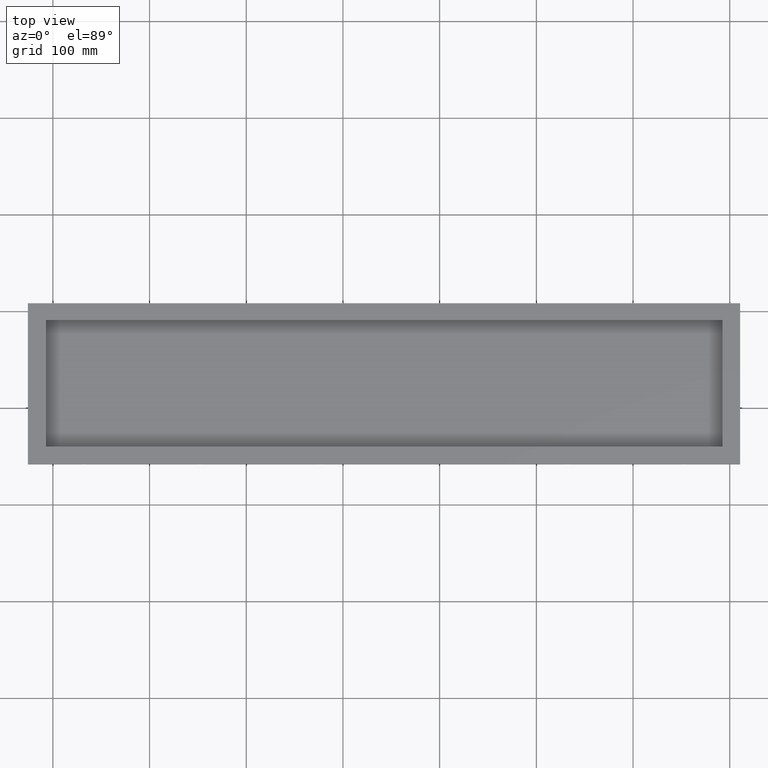
[diagram: clean part render]
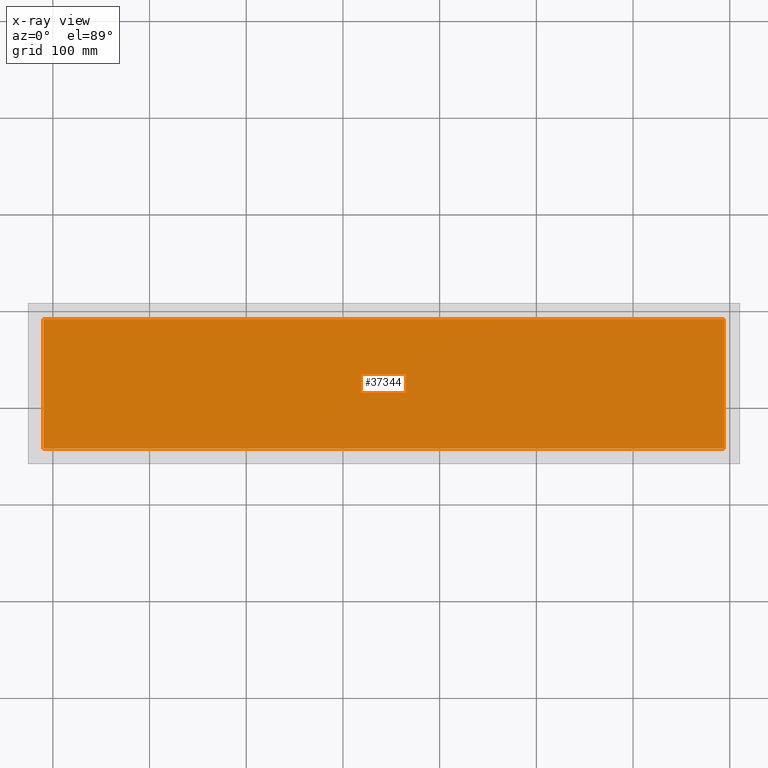
[diagram: x-ray — body ghosted, one internal face saturated and labeled with its STEP entity id]
A machine part, top view, then the same camera in x-ray: the body is ghosted and one INTERNAL B-rep face — a face not visible from any outside direction — is saturated and labeled: STEP entity #37344.
In plain terms, the highlighted planar face has unit normal (0, 0, -1).
Its self-contained STEP definition (entity closure, byte-faithful):
#28077 = DIRECTION ( 'NONE',  ( -1.000000000000000000, 0.0000000000000000000, -0.0000000000000000000 ) ) ;
#28078 = VECTOR ( 'NONE', #28077, 1000.000000000000000 ) ;
#28080 = CARTESIAN_POINT ( 'NONE',  ( -352.0000000000000000, -67.00000000000000000, 14.50000000000000000 ) ) ;
#28082 = LINE ( 'NONE', #28080, #28078 ) ;
#28152 = CARTESIAN_POINT ( 'NONE',  ( 352.0000000000000000, -67.00000000000000000, 14.50000000000000000 ) ) ;
#28154 = DIRECTION ( 'NONE',  ( -0.0000000000000000000, -1.000000000000000000, -0.0000000000000000000 ) ) ;
#28155 = VECTOR ( 'NONE', #28154, 1000.000000000000000 ) ;
#28157 = CARTESIAN_POINT ( 'NONE',  ( 352.0000000000000000, 67.00000000000000000, 14.50000000000000000 ) ) ;
#28168 = LINE ( 'NONE', #28157, #28155 ) ;
#28186 = CARTESIAN_POINT ( 'NONE',  ( 352.0000000000000000, 67.00000000000000000, 14.50000000000000000 ) ) ;
#28189 = DIRECTION ( 'NONE',  ( 1.000000000000000000, -0.0000000000000000000, 0.0000000000000000000 ) ) ;
#28190 = VECTOR ( 'NONE', #28189, 1000.000000000000000 ) ;
#28191 = CARTESIAN_POINT ( 'NONE',  ( -352.0000000000000000, 67.00000000000000000, 14.50000000000000000 ) ) ;
#28193 = LINE ( 'NONE', #28191, #28190 ) ;
#28197 = CARTESIAN_POINT ( 'NONE',  ( -352.0000000000000000, 67.00000000000000000, 14.50000000000000000 ) ) ;
#28221 = CARTESIAN_POINT ( 'NONE',  ( -352.0000000000000000, -67.00000000000000000, 14.50000000000000000 ) ) ;
#28250 = DIRECTION ( 'NONE',  ( -1.000000000000000000, 0.0000000000000000000, -0.0000000000000000000 ) ) ;
#28251 = DIRECTION ( 'NONE',  ( 0.0000000000000000000, 0.0000000000000000000, -1.000000000000000000 ) ) ;
#28253 = AXIS2_PLACEMENT_3D ( 'NONE', #28259, #28251, #28250 ) ;
#28259 = CARTESIAN_POINT ( 'NONE',  ( -352.0000000000000000, 67.00000000000000000, 14.50000000000000000 ) ) ;
#28260 = PLANE ( 'NONE',  #28253 ) ;
#28262 = FACE_OUTER_BOUND ( 'NONE', #37349, .T. ) ;
#28263 = DIRECTION ( 'NONE',  ( 0.0000000000000000000, 1.000000000000000000, 0.0000000000000000000 ) ) ;
#28265 = VECTOR ( 'NONE', #28263, 1000.000000000000000 ) ;
#28266 = CARTESIAN_POINT ( 'NONE',  ( -352.0000000000000000, 67.00000000000000000, 14.50000000000000000 ) ) ;
#28267 = LINE ( 'NONE', #28266, #28265 ) ;
#37266 = EDGE_CURVE ( 'NONE', #37314, #37268, #28082, .T. ) ;
#37268 = VERTEX_POINT ( 'NONE', #28221 ) ;
#37282 = VERTEX_POINT ( 'NONE', #28197 ) ;
#37286 = EDGE_CURVE ( 'NONE', #37282, #37287, #28193, .T. ) ;
#37287 = VERTEX_POINT ( 'NONE', #28186 ) ;
#37312 = EDGE_CURVE ( 'NONE', #37287, #37314, #28168, .T. ) ;
#37314 = VERTEX_POINT ( 'NONE', #28152 ) ;
#37333 = EDGE_CURVE ( 'NONE', #37268, #37282, #28267, .T. ) ;
#37344 = ADVANCED_FACE ( 'NONE', ( #28262 ), #28260, .F. ) ;
#37349 = EDGE_LOOP ( 'NONE', ( #37354, #37358, #37361, #37365 ) ) ;
#37354 = ORIENTED_EDGE ( 'NONE', *, *, #37266, .F. ) ;
#37358 = ORIENTED_EDGE ( 'NONE', *, *, #37312, .F. ) ;
#37361 = ORIENTED_EDGE ( 'NONE', *, *, #37286, .F. ) ;
#37365 = ORIENTED_EDGE ( 'NONE', *, *, #37333, .F. ) ;